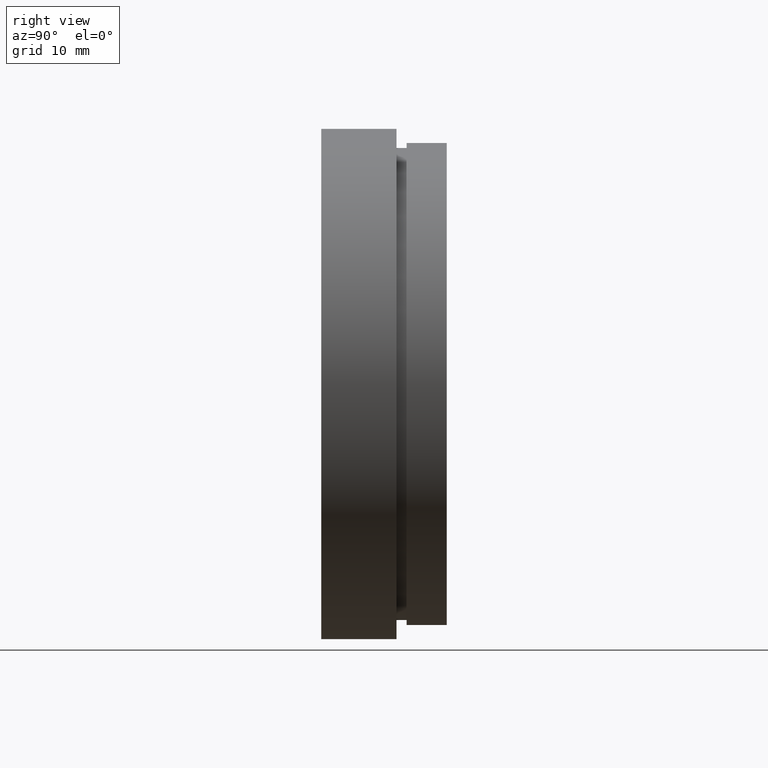
[diagram: clean part render]
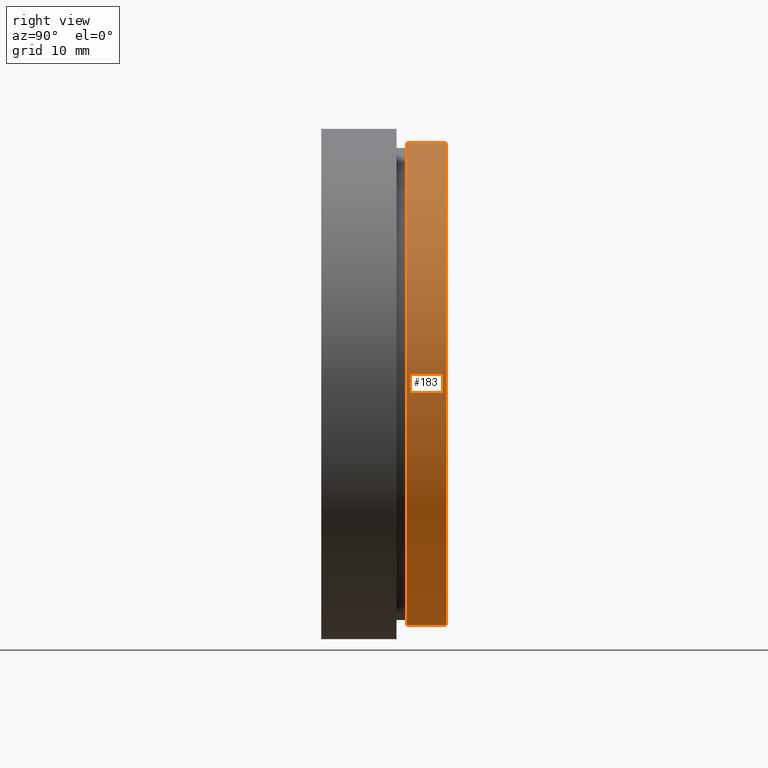
[diagram: same view with one face highlighted and labeled with its STEP entity id]
A machine part, right view. The second image highlights one B-rep face of the part: STEP entity #183.
In plain terms, the highlighted cylindrical surface (partial cylindrical patch) has radius 24 mm, axis along (-0, 1, -0).
Its self-contained STEP definition (entity closure, byte-faithful):
#2 = VECTOR ( 'NONE', #34, 1000.000000000000000 ) ;
#4 = ORIENTED_EDGE ( 'NONE', *, *, #209, .T. ) ;
#34 = DIRECTION ( 'NONE',  ( -0.0000000000000000000, 1.000000000000000000, -0.0000000000000000000 ) ) ;
#65 = ORIENTED_EDGE ( 'NONE', *, *, #617, .F. ) ;
#69 = CARTESIAN_POINT ( 'NONE',  ( 2.939152317953649900E-015, 161.3761669434274500, -24.00000000000001800 ) ) ;
#76 = ORIENTED_EDGE ( 'NONE', *, *, #479, .F. ) ;
#84 = AXIS2_PLACEMENT_3D ( 'NONE', #125, #502, #313 ) ;
#91 = EDGE_CURVE ( 'NONE', #457, #143, #596, .T. ) ;
#98 = LINE ( 'NONE', #322, #2 ) ;
#116 = CARTESIAN_POINT ( 'NONE',  ( 0.0000000000000000000, 8.499999999999980500, 24.00000000000001800 ) ) ;
#125 = CARTESIAN_POINT ( 'NONE',  ( 0.0000000000000000000, 161.3761669434274500, 0.0000000000000000000 ) ) ;
#143 = VERTEX_POINT ( 'NONE', #269 ) ;
#156 = FACE_OUTER_BOUND ( 'NONE', #614, .T. ) ;
#183 = ADVANCED_FACE ( 'NONE', ( #156 ), #565, .T. ) ;
#195 = AXIS2_PLACEMENT_3D ( 'NONE', #552, #264, #602 ) ;
#209 = EDGE_CURVE ( 'NONE', #356, #457, #403, .T. ) ;
#245 = CARTESIAN_POINT ( 'NONE',  ( 0.0000000000000000000, 12.49999999999998400, 24.00000000000001800 ) ) ;
#264 = DIRECTION ( 'NONE',  ( -0.0000000000000000000, 1.000000000000000000, -0.0000000000000000000 ) ) ;
#269 = CARTESIAN_POINT ( 'NONE',  ( 2.939152317953649900E-015, 12.49999999999998400, -24.00000000000001800 ) ) ;
#281 = VERTEX_POINT ( 'NONE', #245 ) ;
#309 = CARTESIAN_POINT ( 'NONE',  ( 2.939152317953649900E-015, 8.499999999999980500, -24.00000000000001800 ) ) ;
#313 = DIRECTION ( 'NONE',  ( 0.0000000000000000000, 0.0000000000000000000, 1.000000000000000000 ) ) ;
#322 = CARTESIAN_POINT ( 'NONE',  ( 0.0000000000000000000, 161.3761669434274500, 24.00000000000001800 ) ) ;
#345 = VECTOR ( 'NONE', #543, 1000.000000000000000 ) ;
#356 = VERTEX_POINT ( 'NONE', #116 ) ;
#377 = AXIS2_PLACEMENT_3D ( 'NONE', #465, #459, #563 ) ;
#402 = CIRCLE ( 'NONE', #377, 24.00000000000001800 ) ;
#403 = CIRCLE ( 'NONE', #195, 24.00000000000001800 ) ;
#457 = VERTEX_POINT ( 'NONE', #309 ) ;
#459 = DIRECTION ( 'NONE',  ( -0.0000000000000000000, 1.000000000000000000, -0.0000000000000000000 ) ) ;
#465 = CARTESIAN_POINT ( 'NONE',  ( 0.0000000000000000000, 12.49999999999998400, 0.0000000000000000000 ) ) ;
#479 = EDGE_CURVE ( 'NONE', #281, #143, #402, .T. ) ;
#502 = DIRECTION ( 'NONE',  ( -0.0000000000000000000, 1.000000000000000000, -0.0000000000000000000 ) ) ;
#511 = ORIENTED_EDGE ( 'NONE', *, *, #91, .T. ) ;
#543 = DIRECTION ( 'NONE',  ( -0.0000000000000000000, 1.000000000000000000, -0.0000000000000000000 ) ) ;
#552 = CARTESIAN_POINT ( 'NONE',  ( 0.0000000000000000000, 8.499999999999980500, 0.0000000000000000000 ) ) ;
#563 = DIRECTION ( 'NONE',  ( 0.0000000000000000000, 0.0000000000000000000, 1.000000000000000000 ) ) ;
#565 = CYLINDRICAL_SURFACE ( 'NONE', #84, 24.00000000000001800 ) ;
#596 = LINE ( 'NONE', #69, #345 ) ;
#602 = DIRECTION ( 'NONE',  ( 0.0000000000000000000, 0.0000000000000000000, 1.000000000000000000 ) ) ;
#614 = EDGE_LOOP ( 'NONE', ( #4, #511, #76, #65 ) ) ;
#617 = EDGE_CURVE ( 'NONE', #356, #281, #98, .T. ) ;